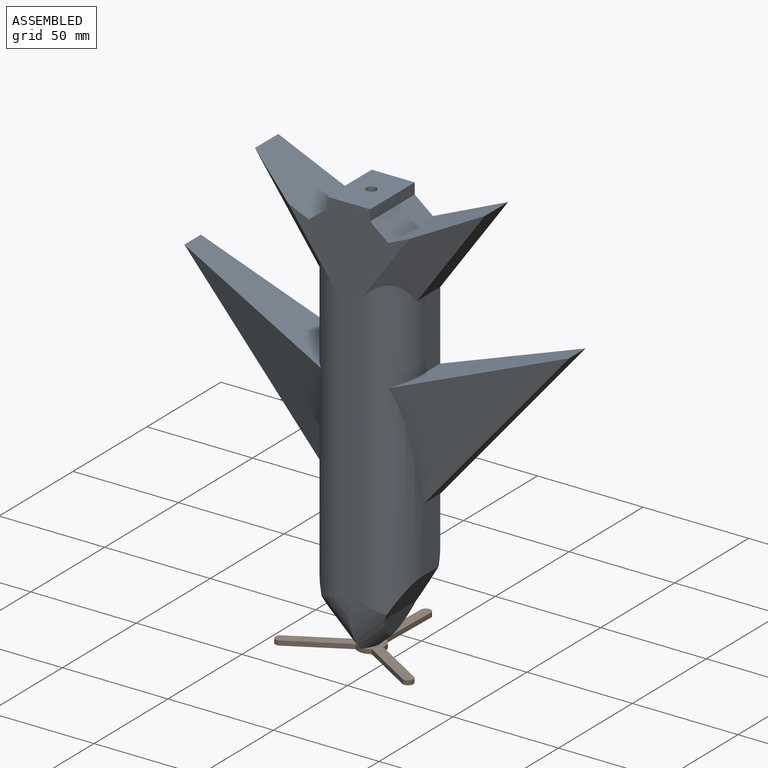
[diagram: assembled view]
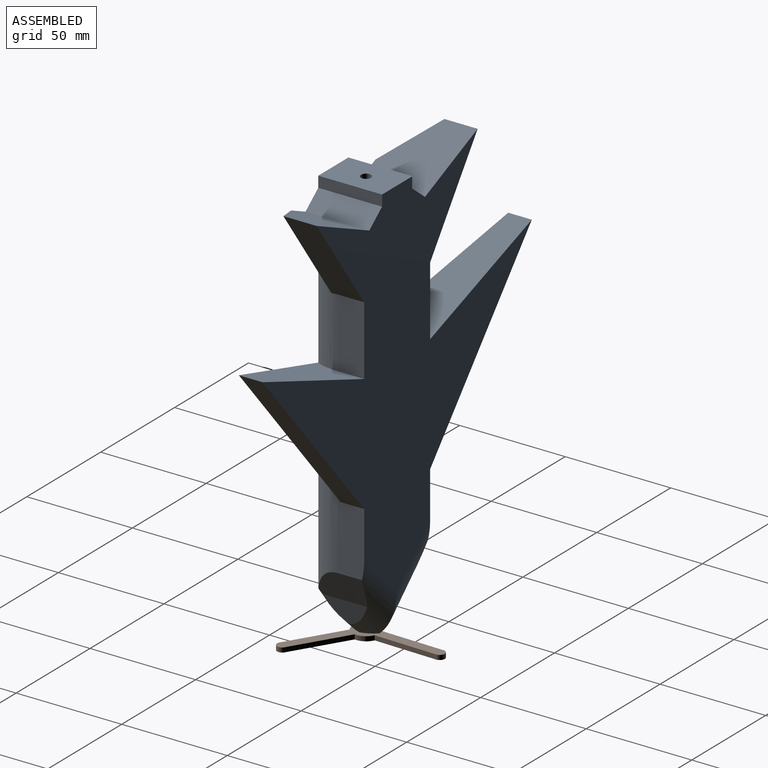
[diagram: assembled view, second angle]
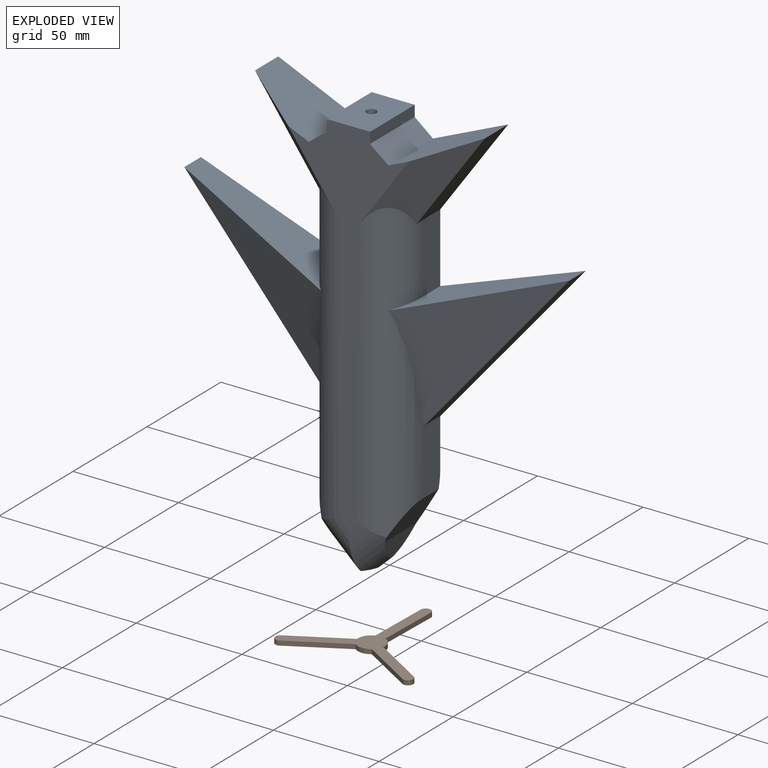
[diagram: exploded view]
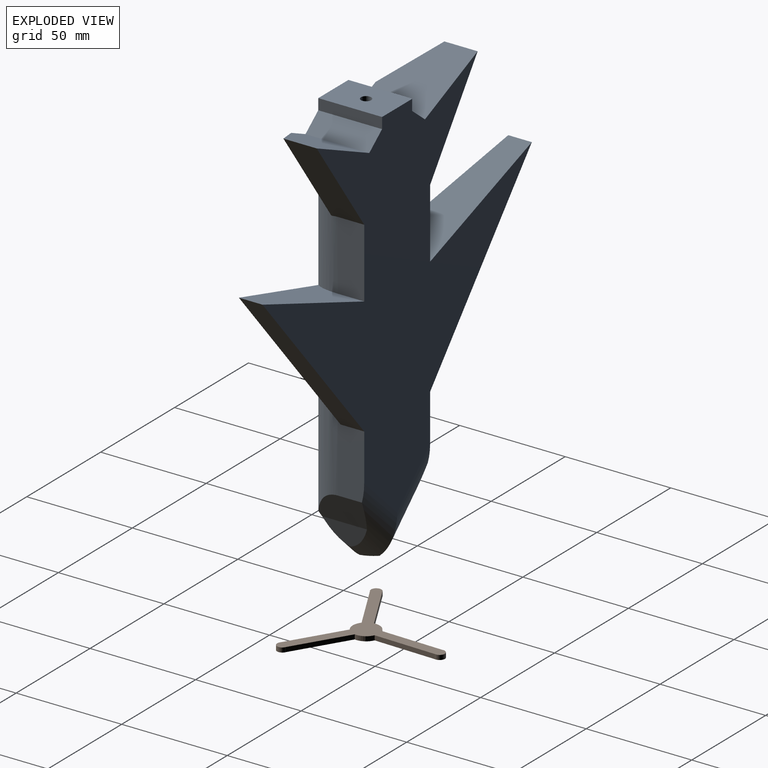
[diagram: exploded view, second angle]
ASSEMBLY  parts=2 mates=2
PART A: 35 faces, bbox 182.2x30.2x199.3 mm
  f0: plane 35.61x30.23mm, normal (-0.4,0,0.92), area 970.2mm2, adj f1,f21,f22,f23,f34
  f1: plane 30.23x8.64mm, normal (0.62,0,0.78), area 334.6mm2, adj f0,f2,f22,f23
  f2: plane 30.23x5.2mm, normal (1,0,0), area 157.1mm2, adj f1,f3,f22,f23
  f3: plane 30.23x20.39mm, normal (0,0,1), area 598.4mm2, adj f2,f4,f22,f23,f24
  f4: plane 30.23x5.2mm, normal (-1,0,0), area 157.1mm2, adj f3,f5,f22,f23
  f5: plane 30.23x8.64mm, normal (-0.62,0,0.78), area 334.6mm2, adj f4,f6,f22,f23
  f6: plane 35.61x30.23mm, normal (0.4,0,0.92), area 970.2mm2, adj f5,f7,f22,f23,f33
  f7: plane 45.38x32.47mm, normal (-0.81,0,-0.58), area 870.9mm2, adj f6,f8,f23,f27,f33
  f8: plane 32.85x12.45mm, normal (-1,0,0), area 408.8mm2, adj f7,f9,f23,f27
  f9: plane 75.03x27.15mm, normal (0.34,0,0.94), area 1337.1mm2, adj f8,f10,f23,f25,f27
  f10: plane 80.56x68.81mm, normal (-0.76,0,-0.65), area 1184.1mm2, adj f9,f11,f23,f25
  f11: plane 35.99x12.45mm, normal (-1,0,0), area 383.2mm2, adj f10,f12,f23,f25,f27,f28
  f12: plane 25.41x15.56mm, normal (-0.88,0,-0.47), area 358.9mm2, adj f11,f13,f27,f28,f30
  f13: plane 21.25x11.69mm, normal (-0.95,0,-0.32), area 168.1mm2, adj f12,f28,f30
  f14: plane 13.58x7.36mm, normal (0,0,-1), area 42.4mm2, adj f24,f28,f29,f30,f31
  f15: plane 21.25x11.69mm, normal (0.95,0,-0.32), area 168.1mm2, adj f16,f29,f31
  f16: plane 25.41x15.56mm, normal (0.88,0,-0.47), area 358.9mm2, adj f15,f17,f29,f31,f32
  f17: plane 35.99x12.45mm, normal (1,0,0), area 383.2mm2, adj f16,f18,f23,f26,f29,f32
  f18: plane 80.56x68.81mm, normal (0.76,0,-0.65), area 1184.1mm2, adj f17,f19,f23,f26
  f19: plane 75.03x27.15mm, normal (-0.34,0,0.94), area 1337.1mm2, adj f18,f20,f23,f26,f32
  f20: plane 32.85x12.45mm, normal (1,0,0), area 408.8mm2, adj f19,f21,f23,f32
  f21: plane 45.38x32.47mm, normal (0.81,0,-0.58), area 870.9mm2, adj f0,f20,f23,f32,f34
  f22: plane 173.31x57.12mm, normal (0,-1,0), area 2389.3mm2, adj f0,f1,f2,f3,f4,f5,f6,f27
  f23: plane 182.21x176.76mm, normal (0,1,0), area 11857mm2, adj f0,f1,f2,f3,f4,f5,f6,f7
  f24: cylinder r=2.4mm len=193.99mm, axis (0,0,-1), area 2919.9mm2, adj f3,f14
  f25: plane 80.56x75.03mm, normal (-0.27,-0.94,-0.23), area 2141.6mm2, adj f9,f10,f11,f27
  f26: plane 80.56x75.03mm, normal (0.27,-0.94,-0.23), area 2141.6mm2, adj f17,f18,f19,f32
  f27: cylinder r=17.78mm len=141.13mm, axis (0,0,1), area 3324.4mm2, adj f7,f8,f9,f11,f12,f22,f25,f30
  f28: cylinder r=17.78mm len=44.67mm, axis (0.73,0,-0.69), area 530.5mm2, adj f11,f12,f13,f14,f23,f29,f30
  f29: cylinder r=17.78mm len=44.67mm, axis (0.73,0,0.69), area 530.5mm2, adj f14,f15,f16,f17,f23,f28,f31
  f30: cylinder r=17.78mm len=30.31mm, axis (-0.73,0,0.69), area 361.9mm2, adj f12,f13,f14,f22,f27,f28,f31
  f31: cylinder r=17.78mm len=30.31mm, axis (-0.73,0,-0.69), area 361.9mm2, adj f14,f15,f16,f22,f29,f30,f32
  f32: cylinder r=17.78mm len=141.13mm, axis (0,0,-1), area 3324.4mm2, adj f16,f17,f19,f20,f21,f22,f26,f31
  f33: plane 49.94x45.38mm, normal (-0.58,-0.71,-0.41), area 840.1mm2, adj f6,f7,f22,f27
  f34: plane 49.94x45.38mm, normal (0.58,-0.71,-0.41), area 840.1mm2, adj f0,f21,f22,f32
PART B: 14 faces, bbox 66.4x2.2x58.1 mm
  f0: plane 29.1x2.18mm, normal (1,0,0), area 63.6mm2, adj f1,f11,f12,f13
  f1: cylinder r=2.47mm len=4.93mm, axis (0,-1,0), area 19.1mm2, adj f0,f2,f12,f13
  f2: plane 29.1x2.18mm, normal (-1,0,0), area 63.6mm2, adj f1,f3,f12,f13
  f3: cylinder r=6.35mm len=6.71mm, axis (0,-1,0), area 18.2mm2, adj f2,f4,f12,f13
  f4: plane 25.2x14.55mm, normal (-0.5,0,0.87), area 63.6mm2, adj f3,f5,f12,f13
  f5: cylinder r=2.47mm len=4.81mm, axis (0,-1,0), area 19.1mm2, adj f4,f6,f12,f13
  f6: plane 25.2x14.55mm, normal (0.5,0,-0.87), area 63.6mm2, adj f5,f7,f12,f13
  f7: cylinder r=6.35mm len=7.75mm, axis (0,-1,0), area 18.2mm2, adj f6,f8,f12,f13
  f8: plane 25.2x14.55mm, normal (-0.5,0,-0.87), area 63.6mm2, adj f7,f9,f12,f13
  f9: cylinder r=2.47mm len=4.81mm, axis (0,-1,0), area 19.1mm2, adj f8,f10,f12,f13
  f10: plane 25.2x14.55mm, normal (0.5,0,0.87), area 63.6mm2, adj f9,f11,f12,f13
  f11: cylinder r=6.35mm len=6.71mm, axis (0,-1,0), area 18.2mm2, adj f0,f10,f12,f13
  f12: plane 66.36x58.13mm, normal (0,1,0), area 580.1mm2, adj f0,f1,f2,f3,f4,f5,f6,f7
  f13: plane 66.36x58.13mm, normal (0,-1,0), area 580.1mm2, adj f0,f1,f2,f3,f4,f5,f6,f7
PLACE A t=(-90.36,17.24,-13.13)mm fixed
PLACE B rot(axis=(0.77,-0.45,-0.45),105.1deg) t=(-90.36,2.52,-64.39)mm
MATE planar A.f14 <-> B.f12  axis (0,0,-1) through (-90.36,1.95,-62.21)mm
MATE cylindrical B.f7 <-> A.f24  axis (0,0,-1) through (-90.36,2.52,-63.3)mm
